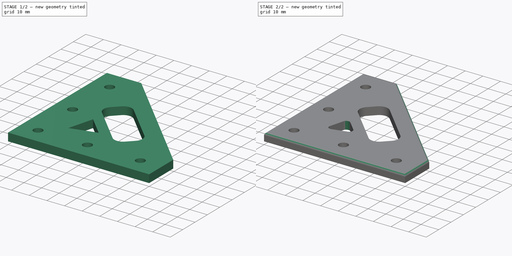
[diagram: build sequence overview — one tinted view per stage of 2, left to right]
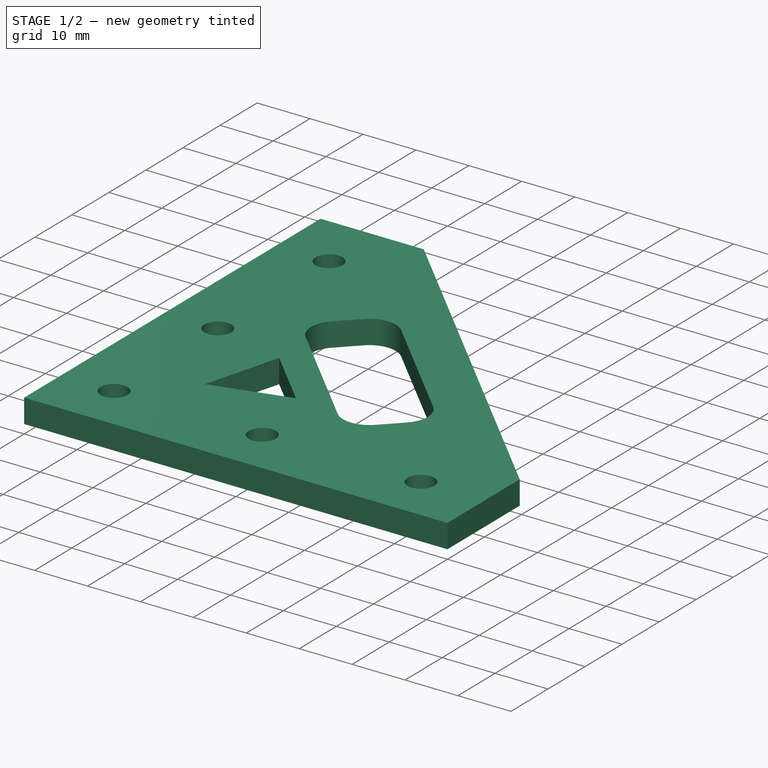
[diagram: stage 1 of 2 — iso view after this stage's code; geometry added in this stage tinted green]
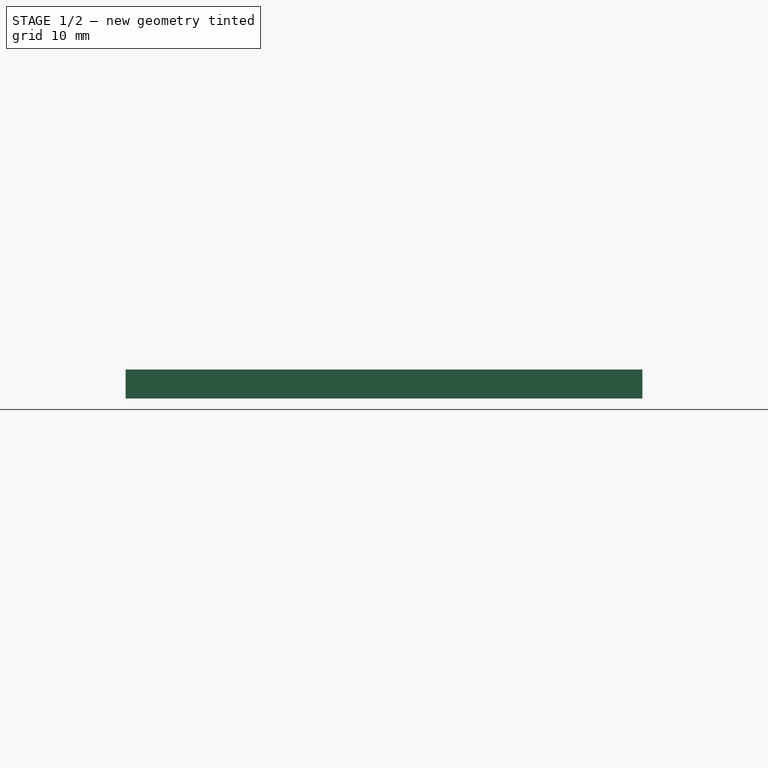
[diagram: stage 1 of 2 — front view after this stage's code; geometry added in this stage tinted green]
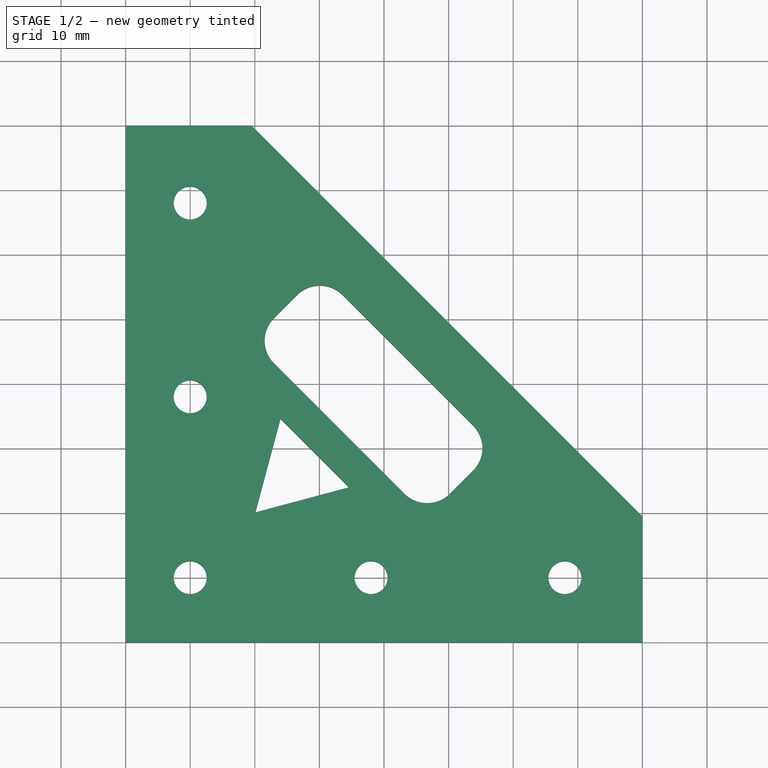
[diagram: stage 1 of 2 — top view after this stage's code; geometry added in this stage tinted green]
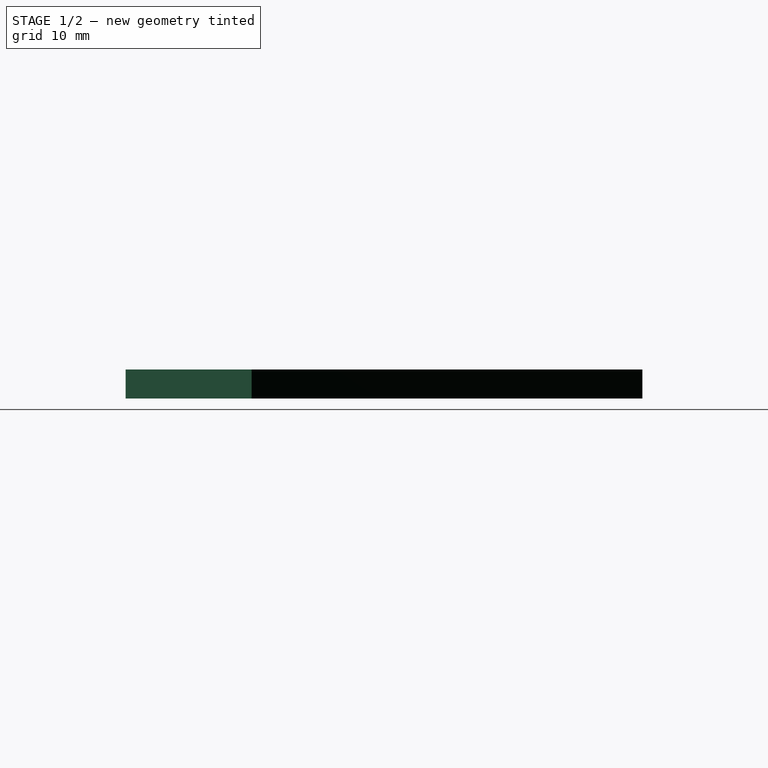
[diagram: stage 1 of 2 — right view after this stage's code; geometry added in this stage tinted green]
FCSTD DOCUMENT  (FreeCAD 0.16R6706 (Git))
Label: top-support
License: All rights reserved
LicenseURL: http://en.wikipedia.org/wiki/All_rights_reserved
objects: PartDesign::Fillet×2, Part::Box×1, Sketcher::SketchObject×1, PartDesign::Pocket×1
note: 6 computed .brp shape members not serialized (recipe doc carries the construction recipe); baked Part::Feature solids carry a one-line shape summary decoded from their .brp

FEATURE [Part::Box] Box  label="Cube"
  Height = 4.5
  Length = 80
  Width = 80
FEATURE [Sketcher::SketchObject] Sketch
  Placement = pos=(0,0,4.5) rot=(0,0,1;0rad)
  Support = -> Box [Face6]
  sketch-geometry (19):
    g0: LineSegment StartX=19.5 StartY=80 StartZ=0 EndX=80 EndY=79.9046 EndZ=0
    g1: LineSegment StartX=80 StartY=79.9046 StartZ=0 EndX=80 EndY=19.5 EndZ=0
    g2: LineSegment StartX=80 StartY=19.5 StartZ=0 EndX=19.5 EndY=80 EndZ=0
    g3: Circle CenterX=10 CenterY=68 CenterZ=0 NormalX=0 NormalY=0 NormalZ=1 Radius=2.55
    g4: Circle CenterX=10 CenterY=10 CenterZ=0 NormalX=0 NormalY=0 NormalZ=1 Radius=2.55
    g5: Circle CenterX=68 CenterY=10 CenterZ=0 NormalX=0 NormalY=0 NormalZ=1 Radius=2.55
    g6: LineSegment StartX=33.6066 StartY=53.7602 StartZ=0 EndX=53.7602 EndY=33.6066 EndZ=0
    g7: LineSegment StartX=53.7602 StartY=26.5355 StartZ=0 EndX=50.2246 EndY=23 EndZ=0
    g8: LineSegment StartX=43.1536 StartY=23 StartZ=0 EndX=23 EndY=43.1536 EndZ=0
    g9: LineSegment StartX=23 StartY=50.2246 StartZ=0 EndX=26.5355 EndY=53.7602 EndZ=0
    g10: ArcOfCircle CenterX=30.0711 CenterY=50.2246 CenterZ=0 NormalX=0 NormalY=0 NormalZ=1 Radius=5 StartAngle=0.785398 EndAngle=2.35619
    g11: ArcOfCircle CenterX=26.5355 CenterY=46.6891 CenterZ=0 NormalX=0 NormalY=0 NormalZ=1 Radius=5 StartAngle=2.35619 EndAngle=3.92699
    g12: ArcOfCircle CenterX=50.2246 CenterY=30.0711 CenterZ=0 NormalX=0 NormalY=0 NormalZ=1 Radius=5 StartAngle=5.49779 EndAngle=7.06858
    g13: ArcOfCircle CenterX=46.6891 CenterY=26.5355 CenterZ=0 NormalX=0 NormalY=0 NormalZ=1 Radius=5 StartAngle=3.92699 EndAngle=5.49779
    g14: Circle CenterX=10 CenterY=38 CenterZ=0 NormalX=0 NormalY=0 NormalZ=1 Radius=2.55
    g15: Circle CenterX=38 CenterY=10 CenterZ=0 NormalX=0 NormalY=0 NormalZ=1 Radius=2.55
    g16: LineSegment StartX=20.1 StartY=20.1 StartZ=0 EndX=23.98 EndY=34.5805 EndZ=0
    g17: LineSegment StartX=23.98 StartY=34.5805 StartZ=0 EndX=34.5805 EndY=23.98 EndZ=0
    g18: LineSegment StartX=34.5805 StartY=23.98 StartZ=0 EndX=20.1 EndY=20.1 EndZ=0
  constraints (51):
    c: Coincident(g0,g1)
    c: Coincident(g1,g2)
    c: Coincident(g2,g0)
    c: DistanceY(g-1,g0) = 80
    c: DistanceX(g-2,g1) = 80
    c: DistanceX(g-2,g0) = 80
    c: DistanceY(g-1,g1) = 19.5
    c: DistanceX(g-2,g0) = 19.5
    c: Radius(g3) = 2.55
    c: Equal(g3,g4)
    c: Equal(g4,g5)
    c: DistanceX(g-2,g3) = 10
    c: DistanceX(g-2,g4) = 10
    c: DistanceY(g-1,g4) = 10
    c: DistanceY(g-1,g5) = 10
    c: DistanceX(g-2,g5) = 68
    c: DistanceY(g-1,g3) = 68
    c: Perpendicular(g9,g6)
    c: Perpendicular(g8,g7)
    c: Parallel(g6,g8)
    c: Parallel(g8,g2)
    c: Tangent(g6,g10) = 1.5708
    c: Tangent(g9,g10) = 1.5708
    c: Tangent(g8,g11) = 1.5708
    c: Tangent(g9,g11) = 1.5708
    c: Tangent(g6,g12) = 1.5708
    c: Tangent(g7,g12) = 1.5708
    c: Tangent(g7,g13) = 1.5708
    c: Tangent(g8,g13) = 1.5708
    c: Radius(g10) = 5
    c: Equal(g10,g11)
    c: Equal(g11,g13)
    c: Equal(g13,g12)
    c: Distance(g9) = 5
    c: Equal(g7,g9)
    c: DistanceX(g-2,g8) = 23
    c: DistanceY(g-1,g8) = 23
    c: Equal(g3,g14)
    c: Equal(g14,g15)
    c: DistanceX(g-2,g14) = 10
    c: DistanceY(g-1,g15) = 10
    c: DistanceX(g-2,g15) = 38
    c: DistanceY(g-1,g14) = 38
    c: Coincident(g16,g17)
    c: Coincident(g17,g18)
    c: DistanceY(g-1,g16) = 20.1
    c: Coincident(g16,g18)
    c: DistanceX(g-2,g16) = 20.1
    c: Parallel(g8,g17)
    c: Equal(g18,g17)
    c: Equal(g17,g16)
FEATURE [PartDesign::Pocket] Pocket
  Length = 5
  Sketch = -> Sketch
  Type = 0
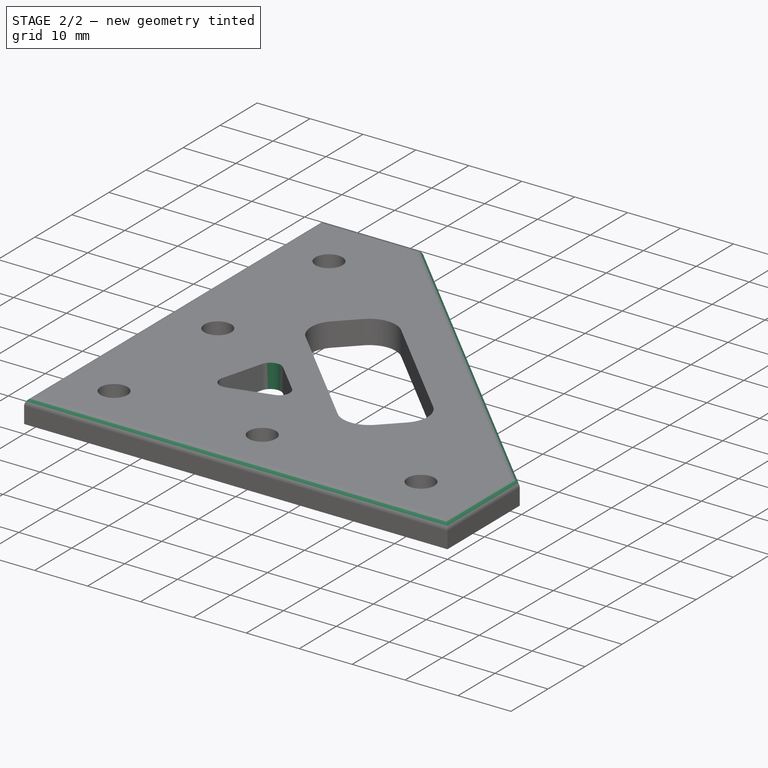
[diagram: stage 2 of 2 — iso view after this stage's code; geometry added in this stage tinted green]
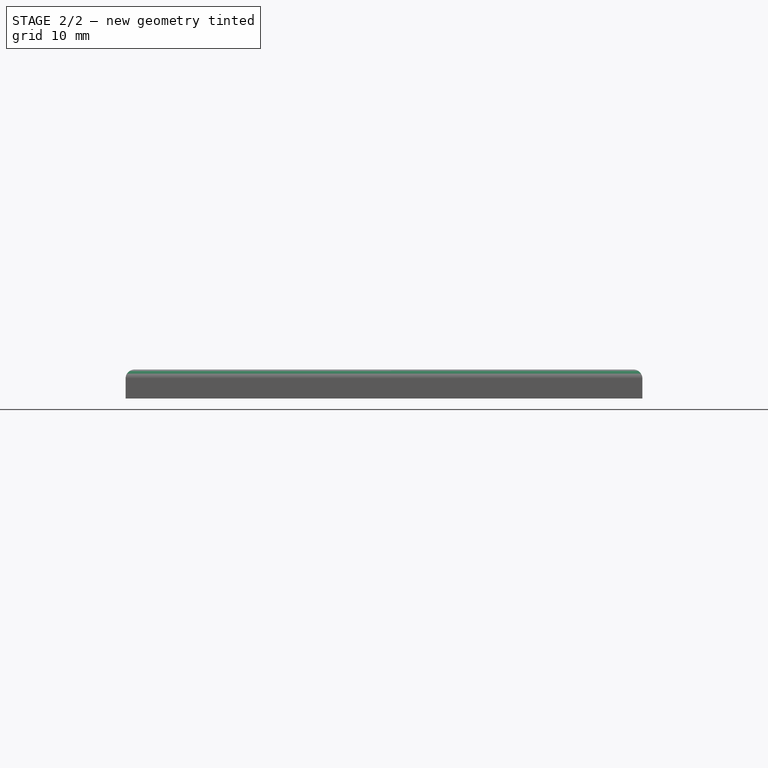
[diagram: stage 2 of 2 — front view after this stage's code; geometry added in this stage tinted green]
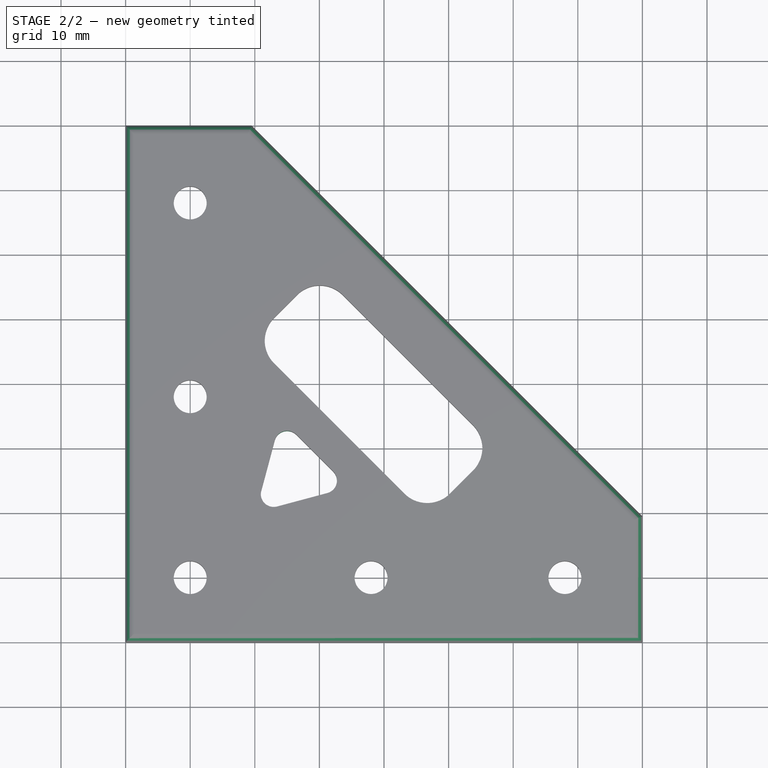
[diagram: stage 2 of 2 — top view after this stage's code; geometry added in this stage tinted green]
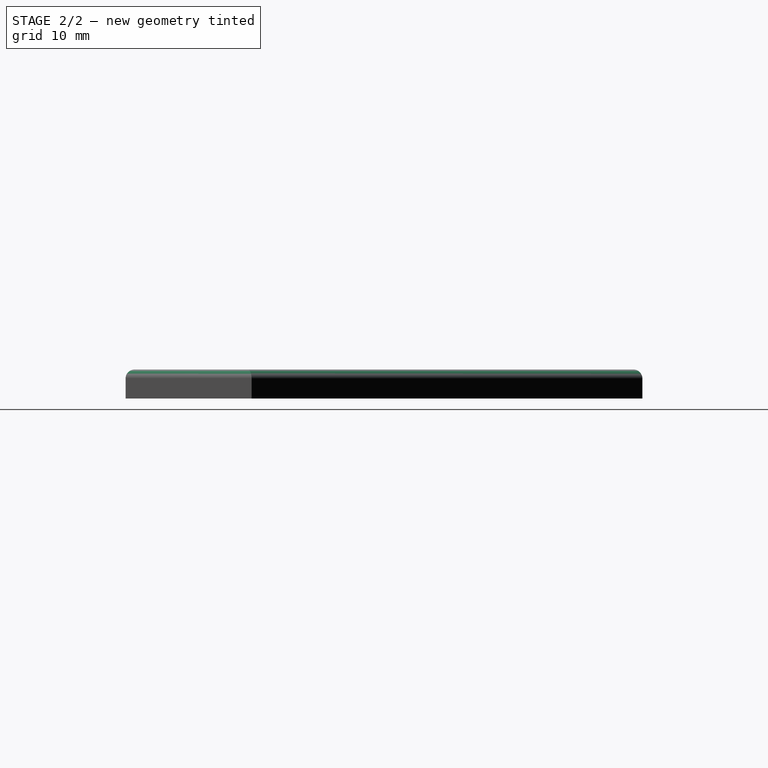
[diagram: stage 2 of 2 — right view after this stage's code; geometry added in this stage tinted green]
FEATURE [PartDesign::Fillet] Fillet
  Base = -> Pocket [Edge8,Edge9,Edge10,Edge7,Edge2]
  Radius = 1.4
FEATURE [PartDesign::Fillet] Fillet001
  Base = -> Fillet [Edge72,Edge70,Edge71]
  Radius = 2
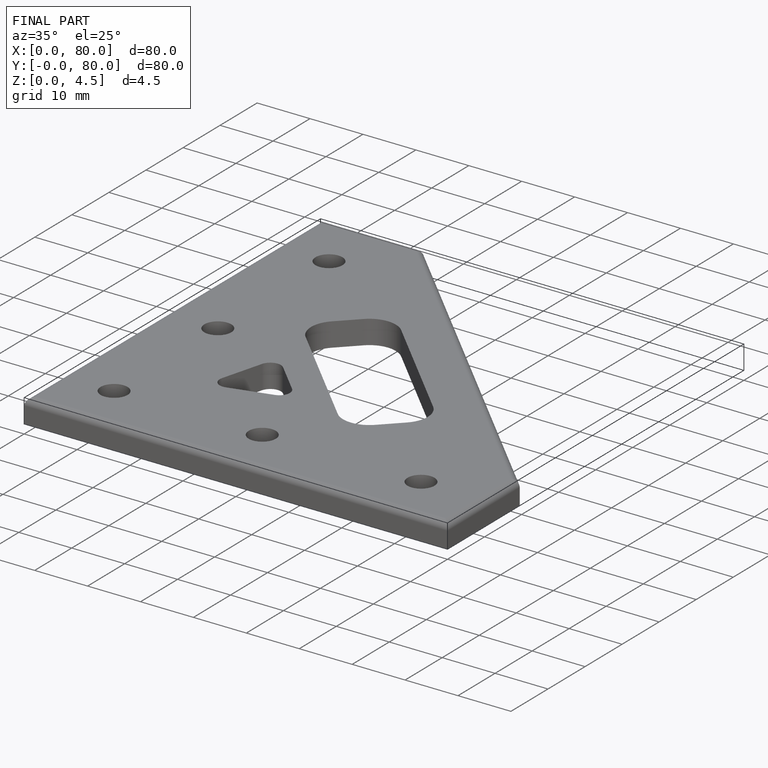
[diagram: finished part — iso view with bounding-box wireframe]
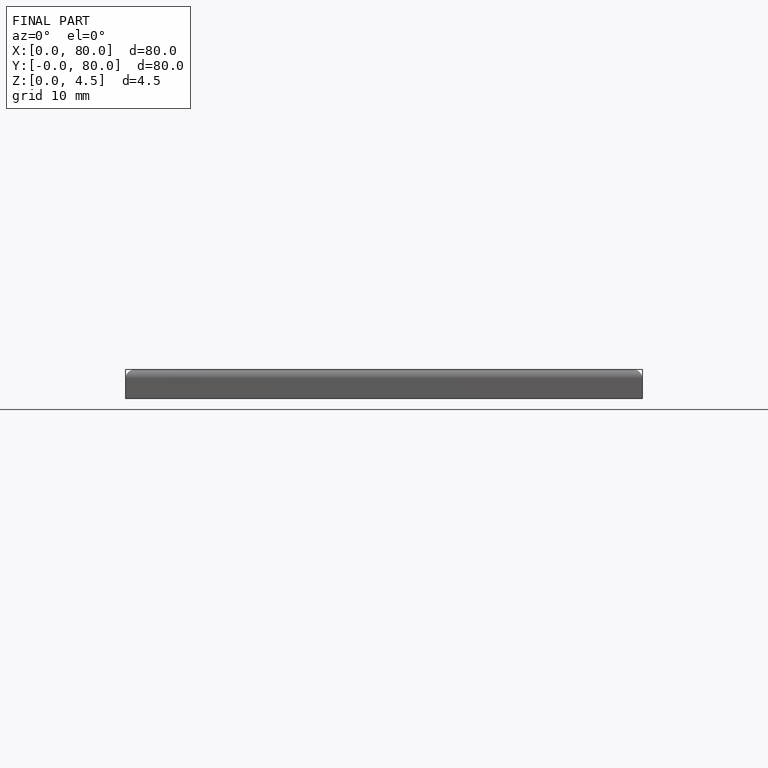
[diagram: finished part — front view with bounding-box wireframe]
